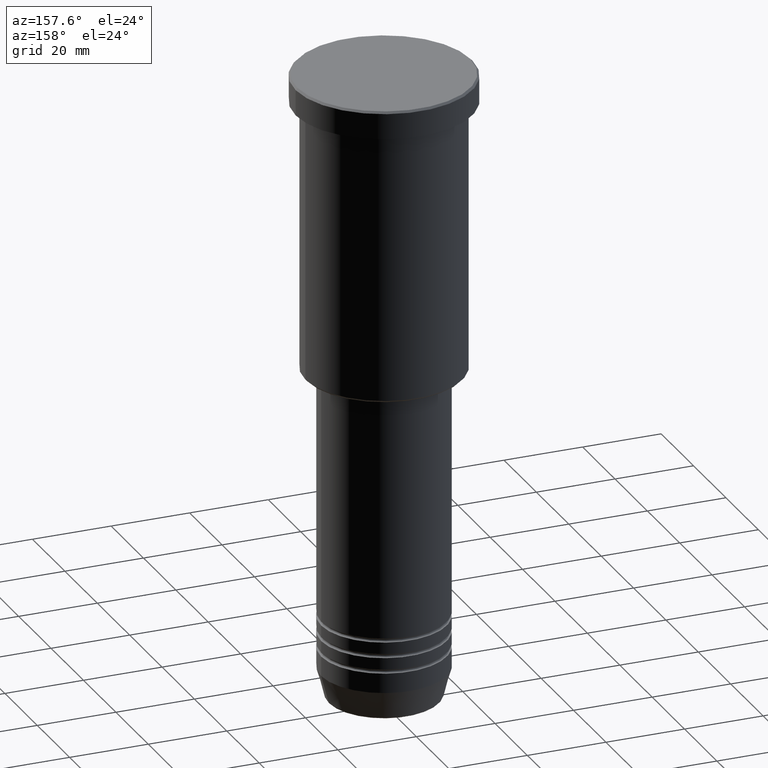
[diagram: clean part render]
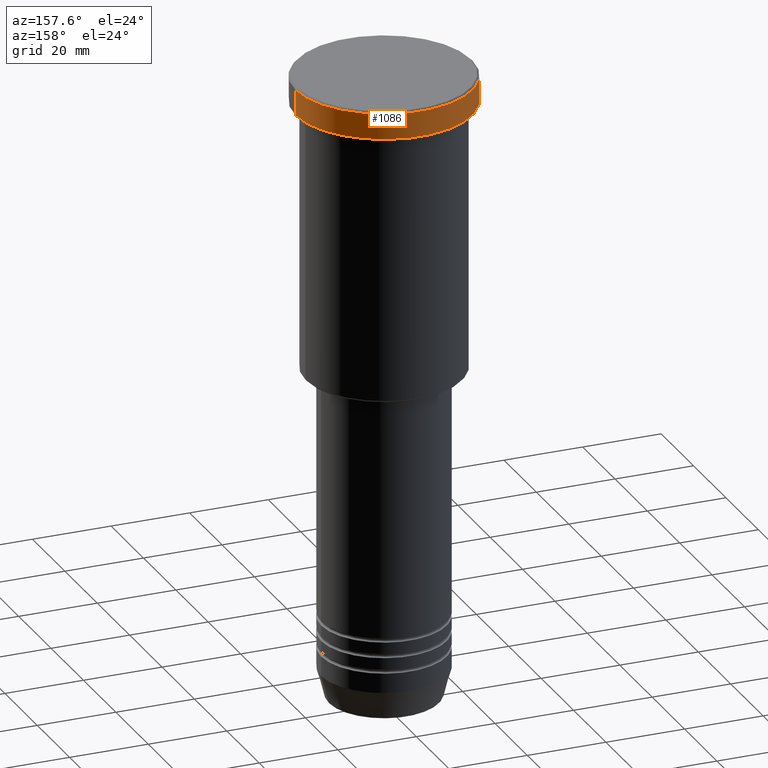
[diagram: same view with one face highlighted and labeled with its STEP entity id]
A machine part, auxiliary view. The second image highlights one B-rep face of the part: STEP entity #1086.
In plain terms, the highlighted cylindrical surface (partial cylindrical patch) has radius 22.5 mm, axis along (-0, -0, 1).
Its self-contained STEP definition (entity closure, byte-faithful):
#14 = EDGE_CURVE ( 'NONE', #283, #1110, #803, .T. ) ;
#22 = CYLINDRICAL_SURFACE ( 'NONE', #762, 22.50000000000000000 ) ;
#30 = DIRECTION ( 'NONE',  ( -0.000000000000000000, -0.000000000000000000, 1.000000000000000000 ) ) ;
#41 = ORIENTED_EDGE ( 'NONE', *, *, #14, .T. ) ;
#42 = DIRECTION ( 'NONE',  ( 1.000000000000000000, 0.000000000000000000, 0.000000000000000000 ) ) ;
#59 = DIRECTION ( 'NONE',  ( 1.000000000000000000, 0.000000000000000000, 0.000000000000000000 ) ) ;
#65 = DIRECTION ( 'NONE',  ( -0.000000000000000000, -0.000000000000000000, 1.000000000000000000 ) ) ;
#81 = DIRECTION ( 'NONE',  ( -0.000000000000000000, -0.000000000000000000, 1.000000000000000000 ) ) ;
#84 = DIRECTION ( 'NONE',  ( 1.000000000000000000, 0.000000000000000000, 0.000000000000000000 ) ) ;
#117 = ORIENTED_EDGE ( 'NONE', *, *, #810, .T. ) ;
#139 = VECTOR ( 'NONE', #81, 1000.000000000000000 ) ;
#170 = CARTESIAN_POINT ( 'NONE',  ( 22.50000000000000000, 0.000000000000000000, 0.000000000000000000 ) ) ;
#184 = CARTESIAN_POINT ( 'NONE',  ( 22.50000000000000000, 0.000000000000000000, -6.999999999999995559 ) ) ;
#235 = CARTESIAN_POINT ( 'NONE',  ( -22.50000000000000000, 2.755455298081544778E-15, -0.4999999999999796274 ) ) ;
#282 = AXIS2_PLACEMENT_3D ( 'NONE', #368, #551, #84 ) ;
#283 = VERTEX_POINT ( 'NONE', #235 ) ;
#308 = FACE_OUTER_BOUND ( 'NONE', #901, .T. ) ;
#368 = CARTESIAN_POINT ( 'NONE',  ( 0.000000000000000000, 0.000000000000000000, -6.999999999999995559 ) ) ;
#551 = DIRECTION ( 'NONE',  ( -0.000000000000000000, -0.000000000000000000, 1.000000000000000000 ) ) ;
#599 = CARTESIAN_POINT ( 'NONE',  ( 0.000000000000000000, 0.000000000000000000, -0.4999999999999796274 ) ) ;
#622 = CARTESIAN_POINT ( 'NONE',  ( -22.50000000000000000, 2.755455298081544778E-15, -6.999999999999995559 ) ) ;
#630 = AXIS2_PLACEMENT_3D ( 'NONE', #599, #1055, #59 ) ;
#636 = EDGE_CURVE ( 'NONE', #671, #853, #1058, .T. ) ;
#639 = ORIENTED_EDGE ( 'NONE', *, *, #1038, .F. ) ;
#671 = VERTEX_POINT ( 'NONE', #184 ) ;
#762 = AXIS2_PLACEMENT_3D ( 'NONE', #1142, #30, #42 ) ;
#803 = CIRCLE ( 'NONE', #630, 22.50000000000000000 ) ;
#804 = CARTESIAN_POINT ( 'NONE',  ( 22.50000000000000000, 0.000000000000000000, -0.4999999999999796274 ) ) ;
#810 = EDGE_CURVE ( 'NONE', #853, #283, #892, .T. ) ;
#853 = VERTEX_POINT ( 'NONE', #622 ) ;
#892 = LINE ( 'NONE', #1165, #918 ) ;
#901 = EDGE_LOOP ( 'NONE', ( #1140, #117, #41, #639 ) ) ;
#918 = VECTOR ( 'NONE', #65, 1000.000000000000000 ) ;
#1038 = EDGE_CURVE ( 'NONE', #671, #1110, #1102, .T. ) ;
#1055 = DIRECTION ( 'NONE',  ( 0.000000000000000000, 0.000000000000000000, -1.000000000000000000 ) ) ;
#1058 = CIRCLE ( 'NONE', #282, 22.50000000000000000 ) ;
#1086 = ADVANCED_FACE ( 'NONE', ( #308 ), #22, .T. ) ;
#1102 = LINE ( 'NONE', #170, #139 ) ;
#1110 = VERTEX_POINT ( 'NONE', #804 ) ;
#1140 = ORIENTED_EDGE ( 'NONE', *, *, #636, .T. ) ;
#1142 = CARTESIAN_POINT ( 'NONE',  ( 0.000000000000000000, 0.000000000000000000, 0.000000000000000000 ) ) ;
#1165 = CARTESIAN_POINT ( 'NONE',  ( -22.50000000000000000, 2.755455298081544778E-15, 0.000000000000000000 ) ) ;